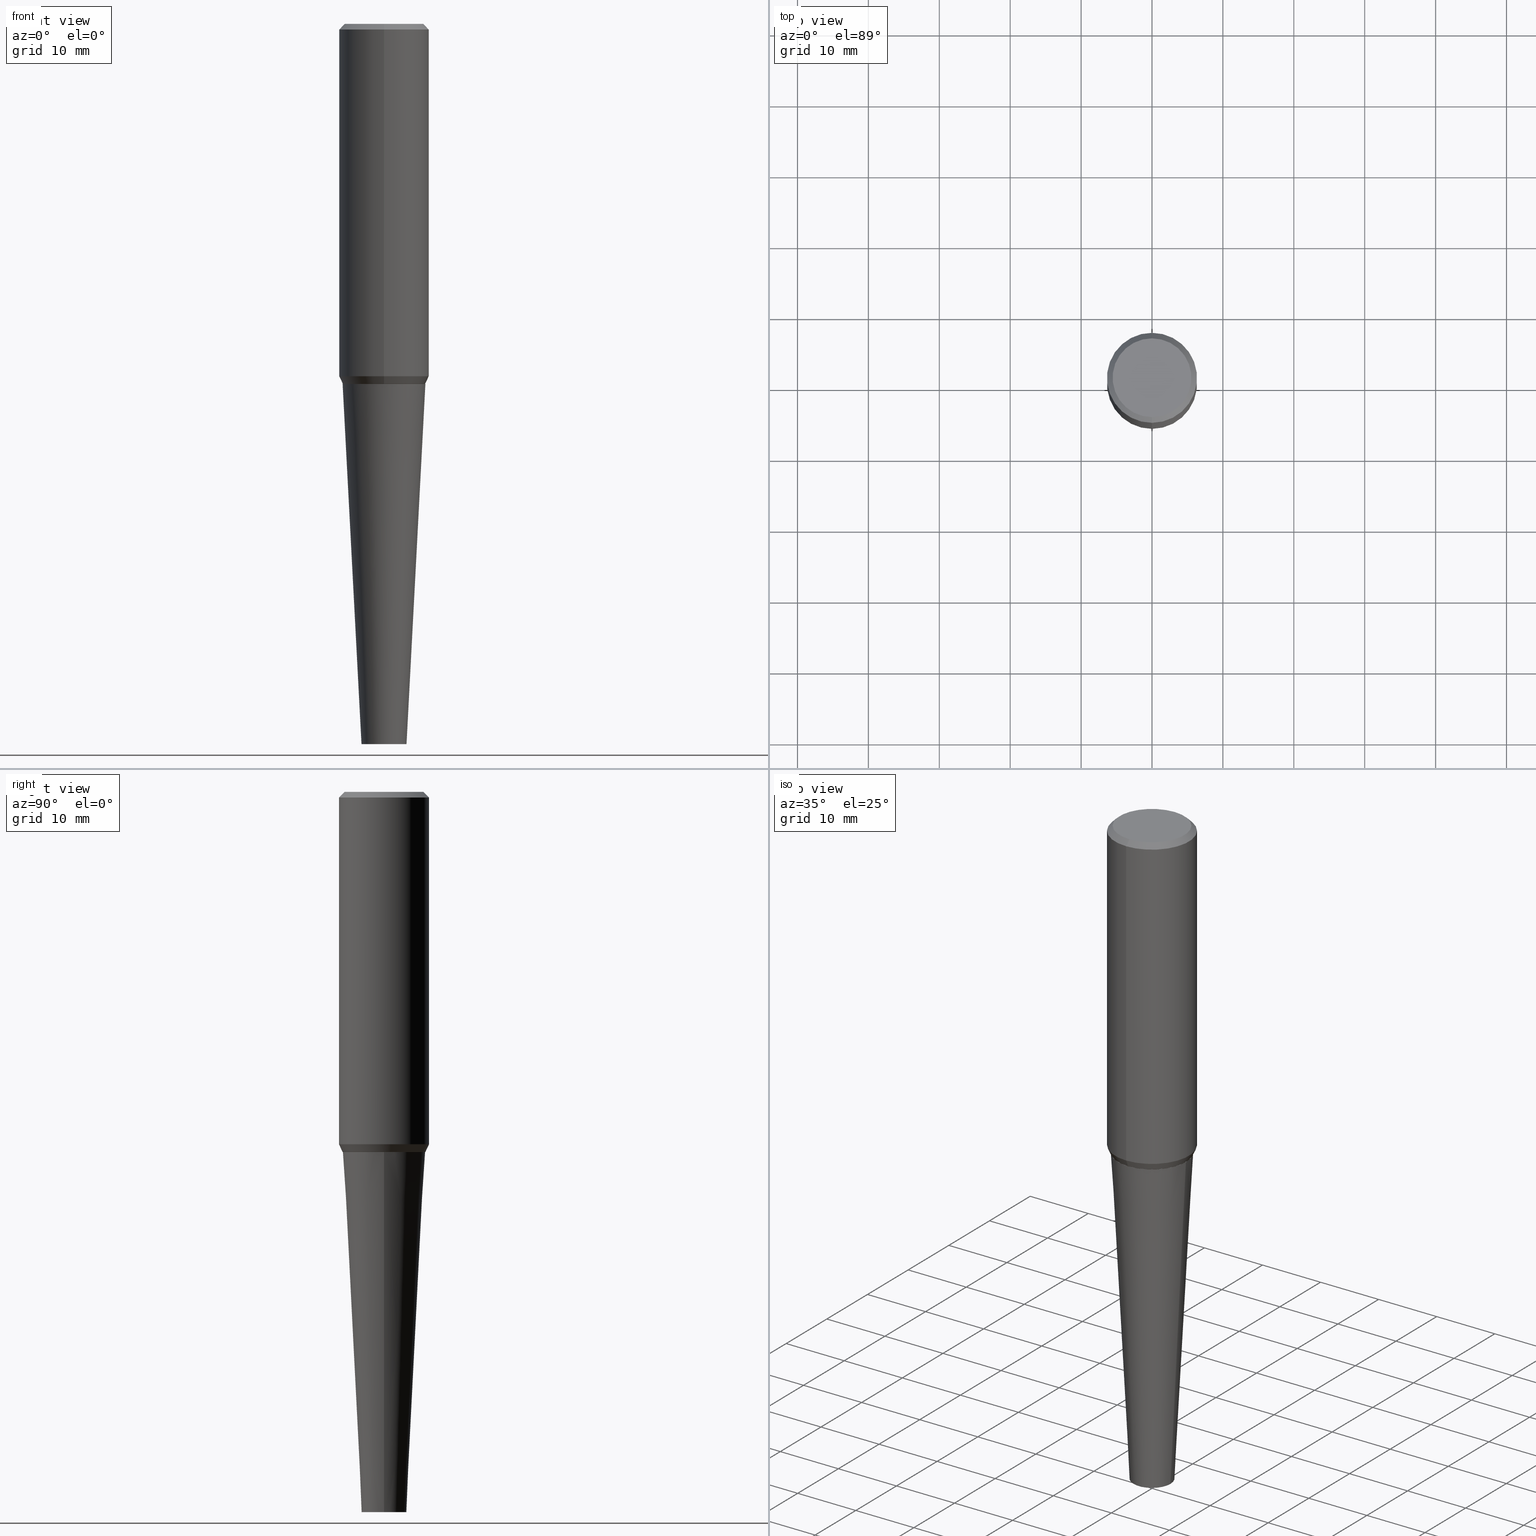
[diagram: canonical four-view strip — front | top / right | iso, engineering-drawing reading convention]
A machine part, canonical four-view strip (front | top / right | iso — engineering-drawing reading convention). The complete STEP part file that produces these views, byte-faithful:
ISO-10303-21;
HEADER;
FILE_DESCRIPTION (( 'STEP AP203' ),
    '1' );
FILE_NAME ('32361.STEP',
    '2024-03-04T15:08:43',
    ( '' ),
    ( '' ),
    'SwSTEP 2.0',
    'SolidWorks 2023',
    '' );
FILE_SCHEMA (( 'CONFIG_CONTROL_DESIGN' ));
ENDSEC;

DATA;
#1 = PERSON_AND_ORGANIZATION ( #199, #4 ) ;
#2 = CARTESIAN_POINT ( 'NONE',  ( 4.947200479945002663E-29, -6.902391049035725950E-15, -2.000000000000000000 ) ) ;
#3 = AXIS2_PLACEMENT_3D ( 'NONE', #415, #62, #383 ) ;
#4 = ORGANIZATION ( 'UNSPECIFIED', 'UNSPECIFIED', '' ) ;
#5 = DIRECTION ( 'NONE',  ( -6.982962677686265133E-15, -1.000000000000000000, 3.207890312582139837E-15 ) ) ;
#6 = DIRECTION ( 'NONE',  ( -6.982962677686266711E-15, -1.000000000000000000, 3.559373534079351446E-15 ) ) ;
#7 = DIRECTION ( 'NONE',  ( -6.982962677686265922E-15, -1.000000000000000000, 3.207890312582139837E-15 ) ) ;
#8 = AXIS2_PLACEMENT_3D ( 'NONE', #292, #72, #6 ) ;
#9 = AXIS2_PLACEMENT_3D ( 'NONE', #265, #401, #5 ) ;
#10 = DIRECTION ( 'NONE',  ( -2.643499361395871506E-29, 3.207890312582139837E-15, 1.000000000000000000 ) ) ;
#11 = CC_DESIGN_DATE_AND_TIME_ASSIGNMENT ( #187, #219, ( #70 ) ) ;
#12 = FACE_OUTER_BOUND ( 'NONE', #407, .T. ) ;
#13 = LINE ( 'NONE', #200, #180 ) ;
#14 = CONICAL_SURFACE ( 'NONE', #193, 0.2500000000000004996, 0.7853981633974468357 ) ;
#15 = MANIFOLD_SOLID_BREP ( 'Body-Move/Copy2[1]', #372 ) ;
#16 = MANIFOLD_SOLID_BREP ( 'Body-Move/Copy2[2]', #327 ) ;
#17 = FACE_OUTER_BOUND ( 'NONE', #99, .T. ) ;
#18 = EDGE_CURVE ( 'NONE', #384, #403, #146, .T. ) ;
#19 = EDGE_LOOP ( 'NONE', ( #86, #360, #108, #311 ) ) ;
#20 = ORIENTED_EDGE ( 'NONE', *, *, #291, .F. ) ;
#21 = CARTESIAN_POINT ( 'NONE',  ( 1.776356839400248295E-15, 0.2499999999999997224, -7.828487236126975993E-16 ) ) ;
#22 = ORIENTED_EDGE ( 'NONE', *, *, #95, .F. ) ;
#23 = CONICAL_SURFACE ( 'NONE', #286, 0.2293155585660684170, 0.7853981633974848053 ) ;
#24 = CARTESIAN_POINT ( 'NONE',  ( -1.607844110618465136E-15, -0.2302524279209388069, -1.999063130645135633 ) ) ;
#25 = AXIS2_PLACEMENT_3D ( 'NONE', #416, #283, #29 ) ;
#26 = DIRECTION ( 'NONE',  ( -2.643499361395871506E-29, 3.207890312582139837E-15, 1.000000000000000000 ) ) ;
#27 = EDGE_CURVE ( 'NONE', #405, #394, #270, .T. ) ;
#28 = COORDINATED_UNIVERSAL_TIME_OFFSET ( 5, 0, .BEHIND. ) ;
#29 = DIRECTION ( 'NONE',  ( -6.982962677686265922E-15, -1.000000000000000000, 3.278217592397117045E-15 ) ) ;
#30 = DIRECTION ( 'NONE',  ( -2.643499361395871506E-29, 3.207890312582139837E-15, 1.000000000000000000 ) ) ;
#31 = VECTOR ( 'NONE', #369, 39.37007874015748143 ) ;
#32 = DIRECTION ( 'NONE',  ( -6.982962677686265922E-15, -1.000000000000000000, 3.207890312582139837E-15 ) ) ;
#33 = DIRECTION ( 'NONE',  ( 2.643499361395871506E-29, -3.207890312582139837E-15, -1.000000000000000000 ) ) ;
#34 = LOCAL_TIME ( 10, 8, 43.00000000000000000, #380 ) ;
#35 = PLANE ( 'NONE',  #395 ) ;
#36 = CARTESIAN_POINT ( 'NONE',  ( 4.944723866403708802E-29, -6.899385674908104281E-15, -1.999063130645136521 ) ) ;
#37 = LINE ( 'NONE', #168, #38 ) ;
#38 = VECTOR ( 'NONE', #136, 39.37007874015748854 ) ;
#39 = ORIENTED_EDGE ( 'NONE', *, *, #410, .F. ) ;
#40 = DIRECTION ( 'NONE',  ( 2.643499361395871506E-29, -3.207890312582139837E-15, -1.000000000000000000 ) ) ;
#41 = LINE ( 'NONE', #341, #115 ) ;
#42 = AXIS2_PLACEMENT_3D ( 'NONE', #109, #230, #83 ) ;
#43 = ADVANCED_FACE ( 'NONE', ( #212 ), #69, .T. ) ;
#44 = CC_DESIGN_SECURITY_CLASSIFICATION ( #70, ( #262 ) ) ;
#45 = CARTESIAN_POINT ( 'NONE',  ( 4.890937612370273194E-29, -6.982962677686291165E-15, -2.000000000000000000 ) ) ;
#46 = EDGE_CURVE ( 'NONE', #245, #268, #122, .T. ) ;
#47 = ORIENTED_EDGE ( 'NONE', *, *, #225, .F. ) ;
#48 = DIRECTION ( 'NONE',  ( 1.000000000000000000, -6.982962677686267499E-15, 0.000000000000000000 ) ) ;
#49 = ADVANCED_FACE ( 'NONE', ( #247 ), #236, .T. ) ;
#50 = LINE ( 'NONE', #21, #170 ) ;
#51 = ORIENTED_EDGE ( 'NONE', *, *, #151, .T. ) ;
#52 = CALENDAR_DATE ( 2024, 4, 3 ) ;
#53 = DIRECTION ( 'NONE',  ( 0.05233595624293686799, 3.121236355867758903E-15, 0.9986295347545742773 ) ) ;
#54 = PERSON_AND_ORGANIZATION ( #199, #4 ) ;
#55 = AXIS2_PLACEMENT_3D ( 'NONE', #250, #253, #324 ) ;
#56 = CC_DESIGN_APPROVAL ( #309, ( #374 ) ) ;
#57 = CARTESIAN_POINT ( 'NONE',  ( -2.571888878031194345E-30, -5.868569961396391316E-16, -0.03125000000000012490 ) ) ;
#58 = CALENDAR_DATE ( 2024, 4, 3 ) ;
#59 = CARTESIAN_POINT ( 'NONE',  ( -1.715124499442888610E-15, -0.2500000000000010547, -0.03124999999999932693 ) ) ;
#60 =( LENGTH_UNIT ( ) NAMED_UNIT ( * ) SI_UNIT ( $, .METRE. ) );
#61 = APPROVAL_DATE_TIME ( #345, #309 ) ;
#62 = DIRECTION ( 'NONE',  ( -2.445468806185136597E-29, 3.491481338843145583E-15, 1.000000000000000000 ) ) ;
#63 = PERSON_AND_ORGANIZATION_ROLE ( 'design_supplier' ) ;
#64 = DIRECTION ( 'NONE',  ( -2.643499361395871506E-29, 3.207890312582139837E-15, 1.000000000000000000 ) ) ;
#65 = CIRCLE ( 'NONE', #135, 0.2293155585660683893 ) ;
#66 = ADVANCED_FACE ( 'NONE', ( #240 ), #84, .F. ) ;
#67 = FACE_OUTER_BOUND ( 'NONE', #371, .T. ) ;
#68 = CARTESIAN_POINT ( 'NONE',  ( -2.571888878031194345E-30, -5.868569961396391316E-16, -0.03125000000000012490 ) ) ;
#69 = CONICAL_SURFACE ( 'NONE', #302, 0.1250000000000000555, 0.05235987755982290243 ) ;
#70 = SECURITY_CLASSIFICATION ( '', '', #289 ) ;
#71 = CIRCLE ( 'NONE', #249, 0.2302524279209319791 ) ;
#72 = DIRECTION ( 'NONE',  ( -2.643499361395871506E-29, 3.207890312582139837E-15, 1.000000000000000000 ) ) ;
#73 = ADVANCED_FACE ( 'NONE', ( #17 ), #23, .T. ) ;
#74 = DIRECTION ( 'NONE',  ( -2.643499361395871506E-29, 3.207890312582139837E-15, 1.000000000000000000 ) ) ;
#75 = ORIENTED_EDGE ( 'NONE', *, *, #101, .F. ) ;
#76 = DIRECTION ( 'NONE',  ( 6.982962677686265133E-15, 1.000000000000000000, -3.209921392555503119E-15 ) ) ;
#77 = DIRECTION ( 'NONE',  ( -2.643499361395871506E-29, 3.207890312582139837E-15, 1.000000000000000000 ) ) ;
#78 = FACE_OUTER_BOUND ( 'NONE', #228, .T. ) ;
#79 = DIRECTION ( 'NONE',  ( 1.000000000000000000, -6.982962677686275388E-15, 0.000000000000000000 ) ) ;
#80 = ORIENTED_EDGE ( 'NONE', *, *, #166, .F. ) ;
#81 = CARTESIAN_POINT ( 'NONE',  ( -2.571888878031194345E-30, -5.868569961396391316E-16, -0.03125000000000012490 ) ) ;
#82 = EDGE_LOOP ( 'NONE', ( #80, #134, #237, #202 ) ) ;
#83 = DIRECTION ( 'NONE',  ( 1.000000000000000000, -6.982962677686275388E-15, 0.000000000000000000 ) ) ;
#84 = PLANE ( 'NONE',  #332 ) ;
#85 = LOCAL_TIME ( 10, 8, 43.00000000000000000, #386 ) ;
#86 = ORIENTED_EDGE ( 'NONE', *, *, #176, .T. ) ;
#87 = EDGE_LOOP ( 'NONE', ( #267, #301, #365, #285 ) ) ;
#88 = PRODUCT_DEFINITION_SHAPE ( 'NONE', 'NONE',  #374 ) ;
#89 = APPLICATION_PROTOCOL_DEFINITION ( 'international standard', 'config_control_design', 1994, #385 ) ;
#90 = APPROVAL_ROLE ( '' ) ;
#91 = AXIS2_PLACEMENT_3D ( 'NONE', #197, #356, #92 ) ;
#92 = DIRECTION ( 'NONE',  ( 1.000000000000000000, 0.000000000000000000, 0.000000000000000000 ) ) ;
#93 = CARTESIAN_POINT ( 'NONE',  ( 8.728703347108814534E-16, 0.1249999999999860945, -4.000000000000000888 ) ) ;
#94 = EDGE_LOOP ( 'NONE', ( #75, #210 ) ) ;
#95 = EDGE_CURVE ( 'NONE', #379, #384, #331, .T. ) ;
#96 = PERSON_AND_ORGANIZATION ( #199, #4 ) ;
#97 = DIRECTION ( 'NONE',  ( -2.445468806185136597E-29, 3.491481338843145583E-15, 1.000000000000000000 ) ) ;
#98 = VECTOR ( 'NONE', #398, 39.37007874015748143 ) ;
#99 = EDGE_LOOP ( 'NONE', ( #313, #238, #181, #204 ) ) ;
#100 = EDGE_CURVE ( 'NONE', #375, #400, #239, .T. ) ;
#101 = EDGE_CURVE ( 'NONE', #242, #342, #138, .T. ) ;
#102 = CONICAL_SURFACE ( 'NONE', #337, 0.2293155585660684170, 0.7853981633974848053 ) ;
#103 = AXIS2_PLACEMENT_3D ( 'NONE', #350, #123, #192 ) ;
#104 = CARTESIAN_POINT ( 'NONE',  ( 9.781875224740546387E-29, -1.396592535537258233E-14, -4.000000000000000000 ) ) ;
#105 = FACE_OUTER_BOUND ( 'NONE', #114, .T. ) ;
#106 = ORIENTED_EDGE ( 'NONE', *, *, #173, .T. ) ;
#107 = AXIS2_PLACEMENT_3D ( 'NONE', #387, #97, #222 ) ;
#108 = ORIENTED_EDGE ( 'NONE', *, *, #224, .F. ) ;
#109 = CARTESIAN_POINT ( 'NONE',  ( 9.781875224740546387E-29, -1.396592535537258233E-14, -4.000000000000000000 ) ) ;
#110 = ORIENTED_EDGE ( 'NONE', *, *, #27, .F. ) ;
#111 = ORIENTED_EDGE ( 'NONE', *, *, #357, .F. ) ;
#112 = DIRECTION ( 'NONE',  ( 4.937700262164541731E-15, 0.7071067811865442421, -0.7071067811865507924 ) ) ;
#113 = DIRECTION ( 'NONE',  ( -2.643499361395871506E-29, 3.207890312582139837E-15, 1.000000000000000000 ) ) ;
#114 = EDGE_LOOP ( 'NONE', ( #260, #280, #51, #22 ) ) ;
#115 = VECTOR ( 'NONE', #53, 39.37007874015748143 ) ;
#116 = COORDINATED_UNIVERSAL_TIME_OFFSET ( 5, 0, .BEHIND. ) ;
#117 =( NAMED_UNIT ( * ) SI_UNIT ( $, .STERADIAN. ) SOLID_ANGLE_UNIT ( ) );
#118 = ADVANCED_FACE ( 'NONE', ( #336 ), #102, .T. ) ;
#119 = PERSON_AND_ORGANIZATION_ROLE ( 'creator' ) ;
#120 = CARTESIAN_POINT ( 'NONE',  ( -0.2298155585660685007, -5.350024920648591981E-15, -2.000000000000000000 ) ) ;
#121 = APPROVAL_ROLE ( '' ) ;
#122 = CIRCLE ( 'NONE', #353, 0.2293155585660683893 ) ;
#123 = DIRECTION ( 'NONE',  ( -2.643499361395871506E-29, 3.207890312582139837E-15, 1.000000000000000000 ) ) ;
#124 = ORIENTED_EDGE ( 'NONE', *, *, #224, .T. ) ;
#125 = LOCAL_TIME ( 10, 8, 43.00000000000000000, #28 ) ;
#126 = DIRECTION ( 'NONE',  ( -6.982962677686266711E-15, -1.000000000000000000, 3.559373534079352235E-15 ) ) ;
#127 = APPROVAL_DATE_TIME ( #185, #174 ) ;
#128 = FACE_OUTER_BOUND ( 'NONE', #94, .T. ) ;
#129 = EDGE_CURVE ( 'NONE', #245, #235, #381, .T. ) ;
#130 = ADVANCED_FACE ( 'NONE', ( #67 ), #351, .T. ) ;
#131 = DIRECTION ( 'NONE',  ( -6.982962677686265133E-15, -1.000000000000000000, 3.573915364592045659E-15 ) ) ;
#132 = ORIENTED_EDGE ( 'NONE', *, *, #171, .T. ) ;
#133 = AXIS2_PLACEMENT_3D ( 'NONE', #295, #77, #296 ) ;
#134 = ORIENTED_EDGE ( 'NONE', *, *, #364, .T. ) ;
#135 = AXIS2_PLACEMENT_3D ( 'NONE', #2, #64, #131 ) ;
#136 = DIRECTION ( 'NONE',  ( 3.002883358794122551E-15, 0.4226182617407023834, 0.9063077870366484934 ) ) ;
#137 = CARTESIAN_POINT ( 'NONE',  ( -1.601301986879585397E-15, -0.2293155585660753282, -1.999999999999999112 ) ) ;
#138 = CIRCLE ( 'NONE', #42, 0.1250000000000000555 ) ;
#139 = VERTEX_POINT ( 'NONE', #163 ) ;
#140 = CARTESIAN_POINT ( 'NONE',  ( 9.781875224740546387E-29, -1.396592535537258233E-14, -4.000000000000000000 ) ) ;
#141 = ORIENTED_EDGE ( 'NONE', *, *, #391, .T. ) ;
#142 = ORIENTED_EDGE ( 'NONE', *, *, #173, .F. ) ;
#143 = DIRECTION ( 'NONE',  ( -2.643499361395871506E-29, 3.207890312582139837E-15, 1.000000000000000000 ) ) ;
#144 = LENGTH_MEASURE_WITH_UNIT ( LENGTH_MEASURE( 0.02539999999999999897 ), #60 );
#145 = ORIENTED_EDGE ( 'NONE', *, *, #161, .F. ) ;
#146 = CIRCLE ( 'NONE', #226, 0.2500000000000004996 ) ;
#147 = APPROVAL_STATUS ( 'not_yet_approved' ) ;
#148 = DATE_AND_TIME ( #58, #85 ) ;
#149 = CARTESIAN_POINT ( 'NONE',  ( -1.745740669421517768E-15, -0.2500000000000067168, -1.956714325658313269 ) ) ;
#150 = APPROVAL_DATE_TIME ( #243, #323 ) ;
#151 = EDGE_CURVE ( 'NONE', #403, #384, #261, .T. ) ;
#152 = ADVANCED_FACE ( 'NONE', ( #259 ), #256, .T. ) ;
#153 = DATE_TIME_ROLE ( 'creation_date' ) ;
#154 = AXIS2_PLACEMENT_3D ( 'NONE', #68, #33, #76 ) ;
#155 = DIRECTION ( 'NONE',  ( -6.982962677686265922E-15, -1.000000000000000000, 3.207890312582139837E-15 ) ) ;
#156 = CARTESIAN_POINT ( 'NONE',  ( 1.745740669421567269E-15, 0.2499999999999998890, -0.03125000000000092981 ) ) ;
#157 = PERSON_AND_ORGANIZATION ( #199, #4 ) ;
#158 = CARTESIAN_POINT ( 'NONE',  ( -3.397982428467409796E-30, -4.866104238714466701E-16, 7.455686268861970718E-17 ) ) ;
#159 = CARTESIAN_POINT ( 'NONE',  ( 1.636631877582718366E-15, 0.2187499999999998890, -6.271691431887245285E-16 ) ) ;
#160 = DIMENSIONAL_EXPONENTS ( 1.000000000000000000, 0.000000000000000000, 0.000000000000000000, 0.000000000000000000, 0.000000000000000000, 0.000000000000000000, 0.000000000000000000 ) ;
#161 = EDGE_CURVE ( 'NONE', #139, #403, #330, .T. ) ;
#162 = DIRECTION ( 'NONE',  ( -6.982962677686265133E-15, -1.000000000000000000, 3.209921392555503119E-15 ) ) ;
#163 = CARTESIAN_POINT ( 'NONE',  ( -1.607929218227708429E-15, -0.2187500000000008327, 7.762828685659639182E-16 ) ) ;
#164 = LOCAL_TIME ( 10, 8, 43.00000000000000000, #221 ) ;
#165 = CARTESIAN_POINT ( 'NONE',  ( 1.745740669421567269E-15, 0.2499999999999998890, -0.03125000000000092981 ) ) ;
#166 = EDGE_CURVE ( 'NONE', #235, #334, #37, .T. ) ;
#167 = CARTESIAN_POINT ( 'NONE',  ( 4.796606803389618255E-29, -7.118049765122808889E-15, -2.000000000000000000 ) ) ;
#168 = CARTESIAN_POINT ( 'NONE',  ( 1.636041900503492355E-15, 0.2302524279209251235, -1.999063130645137187 ) ) ;
#169 = VECTOR ( 'NONE', #258, 39.37007874015748143 ) ;
#170 = VECTOR ( 'NONE', #26, 39.37007874015748143 ) ;
#171 = EDGE_CURVE ( 'NONE', #379, #139, #278, .T. ) ;
#172 = DIRECTION ( 'NONE',  ( 6.982962677686265922E-15, 1.000000000000000000, -3.207890312582139837E-15 ) ) ;
#173 = EDGE_CURVE ( 'NONE', #394, #405, #186, .T. ) ;
#174 = APPROVAL ( #320, 'UNSPECIFIED' ) ;
#175 = CARTESIAN_POINT ( 'NONE',  ( 1.527523085743869857E-15, 0.2187499999999998890, -6.548856472666153755E-16 ) ) ;
#176 = EDGE_CURVE ( 'NONE', #375, #235, #232, .T. ) ;
#177 = ORIENTED_EDGE ( 'NONE', *, *, #18, .T. ) ;
#178 = CARTESIAN_POINT ( 'NONE',  ( -3.397982428467408395E-30, -4.866104238714468673E-16, 1.912385453283800096E-17 ) ) ;
#179 = ORIENTED_EDGE ( 'NONE', *, *, #363, .T. ) ;
#180 = VECTOR ( 'NONE', #263, 39.37007874015748143 ) ;
#181 = ORIENTED_EDGE ( 'NONE', *, *, #176, .F. ) ;
#182 = ORIENTED_EDGE ( 'NONE', *, *, #218, .T. ) ;
#183 = DIRECTION ( 'NONE',  ( 2.438088387897960049E-29, -3.491481338843145188E-15, -1.000000000000000000 ) ) ;
#184 = EDGE_LOOP ( 'NONE', ( #234, #307, #142, #276 ) ) ;
#185 = DATE_AND_TIME ( #52, #34 ) ;
#186 = CIRCLE ( 'NONE', #3, 0.2298155585660685007 ) ;
#187 = DATE_AND_TIME ( #211, #125 ) ;
#188 = CONICAL_SURFACE ( 'NONE', #352, 0.2302524279209320068, 0.4363323129985824944 ) ;
#189 = APPROVAL_STATUS ( 'not_yet_approved' ) ;
#190 = CARTESIAN_POINT ( 'NONE',  ( 0.1250000000000000555, -1.483879569008336725E-14, -4.000000000000000000 ) ) ;
#191 = MECHANICAL_CONTEXT ( 'NONE', #385, 'mechanical' ) ;
#192 = DIRECTION ( 'NONE',  ( -6.982962677686265922E-15, -1.000000000000000000, 3.278217592397117045E-15 ) ) ;
#193 = AXIS2_PLACEMENT_3D ( 'NONE', #81, #40, #298 ) ;
#194 = CARTESIAN_POINT ( 'NONE',  ( -0.1250000000000000555, -1.307774693567245552E-14, -4.000000000000000000 ) ) ;
#195 = ADVANCED_BREP_SHAPE_REPRESENTATION ( '32361', ( #15, #16, #91 ), #305 ) ;
#196 = AXIS2_PLACEMENT_3D ( 'NONE', #178, #366, #406 ) ;
#197 = CARTESIAN_POINT ( 'NONE',  ( 0.000000000000000000, 0.000000000000000000, 0.000000000000000000 ) ) ;
#198 = ORIENTED_EDGE ( 'NONE', *, *, #46, .F. ) ;
#199 = PERSON ( 'UNSPECIFIED', 'UNSPECIFIED', 'UNSPECIFIED', ('UNSPECIFIED'), ('UNSPECIFIED'), ('UNSPECIFIED') ) ;
#200 = CARTESIAN_POINT ( 'NONE',  ( -1.745740669421571411E-15, -0.2500000000000006661, 8.210964326783736998E-16 ) ) ;
#201 = LOCAL_TIME ( 10, 8, 43.00000000000000000, #116 ) ;
#202 = ORIENTED_EDGE ( 'NONE', *, *, #391, .F. ) ;
#203 = UNCERTAINTY_MEASURE_WITH_UNIT (LENGTH_MEASURE( 1.000000000000000082E-05 ), #214, 'distance_accuracy_value', 'NONE');
#204 = ORIENTED_EDGE ( 'NONE', *, *, #306, .F. ) ;
#205 = CARTESIAN_POINT ( 'NONE',  ( 1.604793468218527406E-15, 0.2298155585660615341, -2.000000000000000888 ) ) ;
#206 = EDGE_LOOP ( 'NONE', ( #106, #251 ) ) ;
#207 = VECTOR ( 'NONE', #112, 39.37007874015748143 ) ;
#208 = ORIENTED_EDGE ( 'NONE', *, *, #151, .F. ) ;
#209 = EDGE_LOOP ( 'NONE', ( #111, #182, #179, #110 ) ) ;
#210 = ORIENTED_EDGE ( 'NONE', *, *, #218, .F. ) ;
#211 = CALENDAR_DATE ( 2024, 4, 3 ) ;
#212 = FACE_OUTER_BOUND ( 'NONE', #209, .T. ) ;
#213 = ADVANCED_FACE ( 'NONE', ( #128 ), #290, .T. ) ;
#214 =( CONVERSION_BASED_UNIT ( 'INCH', #144 ) LENGTH_UNIT ( ) NAMED_UNIT ( #160 ) );
#215 = VECTOR ( 'NONE', #414, 39.37007874015748143 ) ;
#216 = ORIENTED_EDGE ( 'NONE', *, *, #171, .F. ) ;
#217 = CIRCLE ( 'NONE', #103, 0.2499999999999999167 ) ;
#218 = EDGE_CURVE ( 'NONE', #342, #242, #241, .T. ) ;
#219 = DATE_TIME_ROLE ( 'classification_date' ) ;
#220 = DIRECTION ( 'NONE',  ( 2.438088387897960049E-29, -3.491481338843145188E-15, -1.000000000000000000 ) ) ;
#221 = COORDINATED_UNIVERSAL_TIME_OFFSET ( 5, 0, .BEHIND. ) ;
#222 = DIRECTION ( 'NONE',  ( 1.000000000000000000, -6.982962677686275388E-15, 0.000000000000000000 ) ) ;
#223 = DIRECTION ( 'NONE',  ( -6.982962677686266711E-15, -1.000000000000000000, 3.559373534079351446E-15 ) ) ;
#224 = EDGE_CURVE ( 'NONE', #400, #334, #217, .T. ) ;
#225 = EDGE_CURVE ( 'NONE', #268, #245, #65, .T. ) ;
#226 = AXIS2_PLACEMENT_3D ( 'NONE', #57, #408, #162 ) ;
#227 = CIRCLE ( 'NONE', #413, 0.2187500000000003608 ) ;
#228 = EDGE_LOOP ( 'NONE', ( #39, #141, #312, #389 ) ) ;
#229 = DIRECTION ( 'NONE',  ( -2.445468806185136597E-29, 3.491481338843145583E-15, 1.000000000000000000 ) ) ;
#230 = DIRECTION ( 'NONE',  ( -2.445468806185136597E-29, 3.491481338843145583E-15, 1.000000000000000000 ) ) ;
#231 = LINE ( 'NONE', #137, #98 ) ;
#232 = CIRCLE ( 'NONE', #55, 0.2302524279209319791 ) ;
#233 = APPROVAL_PERSON_ORGANIZATION ( #319, #323, #411 ) ;
#234 = ORIENTED_EDGE ( 'NONE', *, *, #101, .T. ) ;
#235 = VERTEX_POINT ( 'NONE', #347 ) ;
#236 = CYLINDRICAL_SURFACE ( 'NONE', #196, 0.2500000000000002220 ) ;
#237 = ORIENTED_EDGE ( 'NONE', *, *, #100, .T. ) ;
#238 = ORIENTED_EDGE ( 'NONE', *, *, #129, .T. ) ;
#239 = LINE ( 'NONE', #279, #31 ) ;
#240 = FACE_OUTER_BOUND ( 'NONE', #206, .T. ) ;
#241 = CIRCLE ( 'NONE', #107, 0.1250000000000000555 ) ;
#242 = VERTEX_POINT ( 'NONE', #190 ) ;
#243 = DATE_AND_TIME ( #248, #164 ) ;
#244 = DIRECTION ( 'NONE',  ( -2.445468806185136597E-29, 3.491481338843145583E-15, 1.000000000000000000 ) ) ;
#245 = VERTEX_POINT ( 'NONE', #358 ) ;
#246 = CALENDAR_DATE ( 2024, 4, 3 ) ;
#247 = FACE_OUTER_BOUND ( 'NONE', #314, .T. ) ;
#248 = CALENDAR_DATE ( 2024, 4, 3 ) ;
#249 = AXIS2_PLACEMENT_3D ( 'NONE', #343, #315, #126 ) ;
#250 = CARTESIAN_POINT ( 'NONE',  ( 4.944723866403708802E-29, -6.899385674908104281E-15, -1.999063130645136521 ) ) ;
#251 = ORIENTED_EDGE ( 'NONE', *, *, #27, .T. ) ;
#252 = PERSON_AND_ORGANIZATION ( #199, #4 ) ;
#253 = DIRECTION ( 'NONE',  ( -2.643499361395871506E-29, 3.207890312582139837E-15, 1.000000000000000000 ) ) ;
#254 = FACE_OUTER_BOUND ( 'NONE', #19, .T. ) ;
#255 = CARTESIAN_POINT ( 'NONE',  ( 0.2298155585660685007, -8.587756145904770253E-15, -2.000000000000000000 ) ) ;
#256 = CONICAL_SURFACE ( 'NONE', #8, 0.2302524279209320068, 0.4363323129985824944 ) ;
#257 = CONICAL_SURFACE ( 'NONE', #328, 0.1250000000000000555, 0.05235987755982290243 ) ;
#258 = DIRECTION ( 'NONE',  ( -4.851104656540954809E-15, -0.7071067811865486830, -0.7071067811865463515 ) ) ;
#259 = FACE_OUTER_BOUND ( 'NONE', #82, .T. ) ;
#260 = ORIENTED_EDGE ( 'NONE', *, *, #321, .F. ) ;
#261 = CIRCLE ( 'NONE', #133, 0.2500000000000004996 ) ;
#262 = PRODUCT_DEFINITION_FORMATION_WITH_SPECIFIED_SOURCE ( 'ANY', '', #359, .NOT_KNOWN. ) ;
#263 = DIRECTION ( 'NONE',  ( -2.643499361395871506E-29, 3.207890312582139837E-15, 1.000000000000000000 ) ) ;
#264 = CARTESIAN_POINT ( 'NONE',  ( -0.1250000000000000555, -9.213885928160524934E-15, -4.000000000000000000 ) ) ;
#265 = CARTESIAN_POINT ( 'NONE',  ( -3.397982428467408395E-30, -4.866104238714468673E-16, 1.912385453283800096E-17 ) ) ;
#266 = DIRECTION ( 'NONE',  ( -0.05233595624293686799, 3.858565720287981448E-15, 0.9986295347545742773 ) ) ;
#267 = ORIENTED_EDGE ( 'NONE', *, *, #129, .F. ) ;
#268 = VERTEX_POINT ( 'NONE', #361 ) ;
#269 = CYLINDRICAL_SURFACE ( 'NONE', #9, 0.2500000000000002220 ) ;
#270 = CIRCLE ( 'NONE', #344, 0.2298155585660685007 ) ;
#271 = CIRCLE ( 'NONE', #25, 0.2499999999999999167 ) ;
#272 = ORIENTED_EDGE ( 'NONE', *, *, #321, .T. ) ;
#273 = CARTESIAN_POINT ( 'NONE',  ( 4.947200479945002663E-29, -6.902391049035725950E-15, -2.000000000000000000 ) ) ;
#274 = CARTESIAN_POINT ( 'NONE',  ( 4.947200479945002663E-29, -6.902391049035725950E-15, -2.000000000000000000 ) ) ;
#275 = ADVANCED_FACE ( 'NONE', ( #105 ), #14, .T. ) ;
#276 = ORIENTED_EDGE ( 'NONE', *, *, #363, .F. ) ;
#277 = DIRECTION ( 'NONE',  ( -6.982962677686265922E-15, -1.000000000000000000, 3.573915364592045659E-15 ) ) ;
#278 = CIRCLE ( 'NONE', #316, 0.2187500000000003608 ) ;
#279 = CARTESIAN_POINT ( 'NONE',  ( -1.607844110618465925E-15, -0.2302524279209389180, -1.999063130645135633 ) ) ;
#280 = ORIENTED_EDGE ( 'NONE', *, *, #161, .T. ) ;
#281 = CARTESIAN_POINT ( 'NONE',  ( 4.947200479945002663E-29, -6.902391049035725950E-15, -2.000000000000000000 ) ) ;
#282 = CC_DESIGN_PERSON_AND_ORGANIZATION_ASSIGNMENT ( #157, #349, ( #262 ) ) ;
#283 = DIRECTION ( 'NONE',  ( -2.643499361395871506E-29, 3.207890312582139837E-15, 1.000000000000000000 ) ) ;
#284 = PERSON_AND_ORGANIZATION ( #199, #4 ) ;
#285 = ORIENTED_EDGE ( 'NONE', *, *, #364, .F. ) ;
#286 = AXIS2_PLACEMENT_3D ( 'NONE', #274, #113, #393 ) ;
#287 = DIRECTION ( 'NONE',  ( -1.000000000000000000, 6.982962677686265922E-15, -4.876176775795935793E-29 ) ) ;
#288 = ADVANCED_FACE ( 'NONE', ( #12 ), #299, .F. ) ;
#289 = SECURITY_CLASSIFICATION_LEVEL ( 'unclassified' ) ;
#290 = PLANE ( 'NONE',  #362 ) ;
#291 = EDGE_CURVE ( 'NONE', #400, #403, #13, .T. ) ;
#292 = CARTESIAN_POINT ( 'NONE',  ( 4.944723866403708802E-29, -6.899385674908104281E-15, -1.999063130645136521 ) ) ;
#293 = CC_DESIGN_APPROVAL ( #323, ( #262 ) ) ;
#294 = CC_DESIGN_PERSON_AND_ORGANIZATION_ASSIGNMENT ( #284, #63, ( #262 ) ) ;
#295 = CARTESIAN_POINT ( 'NONE',  ( -2.571888878031194345E-30, -5.868569961396391316E-16, -0.03125000000000012490 ) ) ;
#296 = DIRECTION ( 'NONE',  ( -6.982962677686265133E-15, -1.000000000000000000, 3.209921392555503119E-15 ) ) ;
#297 = DIRECTION ( 'NONE',  ( -2.643499361395871506E-29, 3.207890312582139837E-15, 1.000000000000000000 ) ) ;
#298 = DIRECTION ( 'NONE',  ( 6.982962677686265133E-15, 1.000000000000000000, -3.209921392555503119E-15 ) ) ;
#299 = PLANE ( 'NONE',  #373 ) ;
#300 = DIRECTION ( 'NONE',  ( -6.982962677686265133E-15, -1.000000000000000000, 3.573915364592045659E-15 ) ) ;
#301 = ORIENTED_EDGE ( 'NONE', *, *, #46, .T. ) ;
#302 = AXIS2_PLACEMENT_3D ( 'NONE', #140, #244, #377 ) ;
#303 = PRODUCT_RELATED_PRODUCT_CATEGORY ( 'detail', '', ( #359 ) ) ;
#304 = APPROVAL_PERSON_ORGANIZATION ( #252, #309, #121 ) ;
#305 =( GEOMETRIC_REPRESENTATION_CONTEXT ( 3 ) GLOBAL_UNCERTAINTY_ASSIGNED_CONTEXT ( ( #203 ) ) GLOBAL_UNIT_ASSIGNED_CONTEXT ( ( #214, #382, #117 ) ) REPRESENTATION_CONTEXT ( 'NONE', 'WORKASPACE' ) );
#306 = EDGE_CURVE ( 'NONE', #268, #375, #231, .T. ) ;
#307 = ORIENTED_EDGE ( 'NONE', *, *, #357, .T. ) ;
#308 = DIRECTION ( 'NONE',  ( -1.000000000000000000, 6.982962677686265922E-15, -4.876176775795935793E-29 ) ) ;
#309 = APPROVAL ( #147, 'UNSPECIFIED' ) ;
#310 = DESIGN_CONTEXT ( 'detailed design', #367, 'design' ) ;
#311 = ORIENTED_EDGE ( 'NONE', *, *, #100, .F. ) ;
#312 = ORIENTED_EDGE ( 'NONE', *, *, #291, .T. ) ;
#313 = ORIENTED_EDGE ( 'NONE', *, *, #225, .T. ) ;
#314 = EDGE_LOOP ( 'NONE', ( #124, #412, #208, #20 ) ) ;
#315 = DIRECTION ( 'NONE',  ( -2.643499361395871506E-29, 3.207890312582139837E-15, 1.000000000000000000 ) ) ;
#316 = AXIS2_PLACEMENT_3D ( 'NONE', #158, #30, #155 ) ;
#317 = ADVANCED_FACE ( 'NONE', ( #78 ), #269, .T. ) ;
#318 = VECTOR ( 'NONE', #266, 39.37007874015748143 ) ;
#319 = PERSON_AND_ORGANIZATION ( #199, #4 ) ;
#320 = APPROVAL_STATUS ( 'not_yet_approved' ) ;
#321 = EDGE_CURVE ( 'NONE', #139, #379, #227, .T. ) ;
#322 = CARTESIAN_POINT ( 'NONE',  ( 1.629385043358946603E-15, 0.2293155585660615337, -2.000000000000000888 ) ) ;
#323 = APPROVAL ( #189, 'UNSPECIFIED' ) ;
#324 = DIRECTION ( 'NONE',  ( -6.982962677686266711E-15, -1.000000000000000000, 3.559373534079352235E-15 ) ) ;
#325 = ADVANCED_FACE ( 'NONE', ( #329 ), #35, .F. ) ;
#326 = CC_DESIGN_DATE_AND_TIME_ASSIGNMENT ( #148, #153, ( #374 ) ) ;
#327 = CLOSED_SHELL ( 'NONE', ( #348, #49, #275, #73, #118, #325, #288, #130, #317, #152 ) ) ;
#328 = AXIS2_PLACEMENT_3D ( 'NONE', #104, #229, #79 ) ;
#329 = FACE_OUTER_BOUND ( 'NONE', #370, .T. ) ;
#330 = LINE ( 'NONE', #396, #169 ) ;
#331 = LINE ( 'NONE', #165, #207 ) ;
#332 = AXIS2_PLACEMENT_3D ( 'NONE', #205, #183, #308 ) ;
#333 = DIRECTION ( 'NONE',  ( 2.643499361395871506E-29, -3.207890312582139837E-15, -1.000000000000000000 ) ) ;
#334 = VERTEX_POINT ( 'NONE', #397 ) ;
#335 = ADVANCED_FACE ( 'NONE', ( #399 ), #257, .T. ) ;
#336 = FACE_OUTER_BOUND ( 'NONE', #87, .T. ) ;
#337 = AXIS2_PLACEMENT_3D ( 'NONE', #273, #143, #277 ) ;
#338 = DIRECTION ( 'NONE',  ( -2.445468806185136597E-29, 3.491481338843145583E-15, 1.000000000000000000 ) ) ;
#339 = ORIENTED_EDGE ( 'NONE', *, *, #95, .T. ) ;
#340 = PERSON_AND_ORGANIZATION ( #199, #4 ) ;
#341 = CARTESIAN_POINT ( 'NONE',  ( 0.1250000000000000555, -1.483879569008336725E-14, -4.000000000000000000 ) ) ;
#342 = VERTEX_POINT ( 'NONE', #264 ) ;
#343 = CARTESIAN_POINT ( 'NONE',  ( 4.944723866403708802E-29, -6.899385674908104281E-15, -1.999063130645136521 ) ) ;
#344 = AXIS2_PLACEMENT_3D ( 'NONE', #45, #338, #48 ) ;
#345 = DATE_AND_TIME ( #246, #201 ) ;
#346 = APPLICATION_PROTOCOL_DEFINITION ( 'international standard', 'config_control_design', 1994, #367 ) ;
#347 = CARTESIAN_POINT ( 'NONE',  ( 1.636041900503492750E-15, 0.2302524279209252067, -1.999063130645137187 ) ) ;
#348 = ADVANCED_FACE ( 'NONE', ( #254 ), #188, .T. ) ;
#349 = PERSON_AND_ORGANIZATION_ROLE ( 'creator' ) ;
#350 = CARTESIAN_POINT ( 'NONE',  ( 4.832774827465166052E-29, -6.763535353641446132E-15, -1.956714325658313935 ) ) ;
#351 = CONICAL_SURFACE ( 'NONE', #154, 0.2500000000000004996, 0.7853981633974468357 ) ;
#352 = AXIS2_PLACEMENT_3D ( 'NONE', #36, #10, #223 ) ;
#353 = AXIS2_PLACEMENT_3D ( 'NONE', #281, #368, #300 ) ;
#354 = CC_DESIGN_PERSON_AND_ORGANIZATION_ASSIGNMENT ( #340, #409, ( #359 ) ) ;
#355 = CARTESIAN_POINT ( 'NONE',  ( -3.397982428467409796E-30, -4.866104238714466701E-16, 7.455686268861970718E-17 ) ) ;
#356 = DIRECTION ( 'NONE',  ( 0.000000000000000000, 0.000000000000000000, 1.000000000000000000 ) ) ;
#357 = EDGE_CURVE ( 'NONE', #342, #405, #388, .T. ) ;
#358 = CARTESIAN_POINT ( 'NONE',  ( 1.632713471931219282E-15, 0.2293155585660615059, -2.000000000000000888 ) ) ;
#359 = PRODUCT ( '32361', '32361', '', ( #191 ) ) ;
#360 = ORIENTED_EDGE ( 'NONE', *, *, #166, .T. ) ;
#361 = CARTESIAN_POINT ( 'NONE',  ( -1.601301986879585002E-15, -0.2293155585660753004, -1.999999999999999112 ) ) ;
#362 = AXIS2_PLACEMENT_3D ( 'NONE', #93, #220, #287 ) ;
#363 = EDGE_CURVE ( 'NONE', #242, #394, #41, .T. ) ;
#364 = EDGE_CURVE ( 'NONE', #235, #375, #71, .T. ) ;
#365 = ORIENTED_EDGE ( 'NONE', *, *, #306, .T. ) ;
#366 = DIRECTION ( 'NONE',  ( -2.643499361395871506E-29, 3.207890312582139837E-15, 1.000000000000000000 ) ) ;
#367 = APPLICATION_CONTEXT ( 'configuration controlled 3d designs of mechanical parts and assemblies' ) ;
#368 = DIRECTION ( 'NONE',  ( -2.643499361395871506E-29, 3.207890312582139837E-15, 1.000000000000000000 ) ) ;
#369 = DIRECTION ( 'NONE',  ( -2.951127548643974866E-15, -0.4226182617406966657, 0.9063077870366512689 ) ) ;
#370 = EDGE_LOOP ( 'NONE', ( #47, #198 ) ) ;
#371 = EDGE_LOOP ( 'NONE', ( #145, #216, #339, #177 ) ) ;
#372 = CLOSED_SHELL ( 'NONE', ( #335, #213, #43, #66 ) ) ;
#373 = AXIS2_PLACEMENT_3D ( 'NONE', #175, #333, #172 ) ;
#374 = PRODUCT_DEFINITION ( 'UNKNOWN', '', #262, #310 ) ;
#375 = VERTEX_POINT ( 'NONE', #24 ) ;
#376 = PERSON_AND_ORGANIZATION_ROLE ( 'classification_officer' ) ;
#377 = DIRECTION ( 'NONE',  ( 1.000000000000000000, -6.982962677686275388E-15, 0.000000000000000000 ) ) ;
#378 = SHAPE_DEFINITION_REPRESENTATION ( #88, #195 ) ;
#379 = VERTEX_POINT ( 'NONE', #159 ) ;
#380 = COORDINATED_UNIVERSAL_TIME_OFFSET ( 5, 0, .BEHIND. ) ;
#381 = LINE ( 'NONE', #322, #215 ) ;
#382 =( NAMED_UNIT ( * ) PLANE_ANGLE_UNIT ( ) SI_UNIT ( $, .RADIAN. ) );
#383 = DIRECTION ( 'NONE',  ( 1.000000000000000000, -6.982962677686267499E-15, 0.000000000000000000 ) ) ;
#384 = VERTEX_POINT ( 'NONE', #156 ) ;
#385 = APPLICATION_CONTEXT ( 'configuration controlled 3d designs of mechanical parts and assemblies' ) ;
#386 = COORDINATED_UNIVERSAL_TIME_OFFSET ( 5, 0, .BEHIND. ) ;
#387 = CARTESIAN_POINT ( 'NONE',  ( 9.781875224740546387E-29, -1.396592535537258233E-14, -4.000000000000000000 ) ) ;
#388 = LINE ( 'NONE', #194, #318 ) ;
#389 = ORIENTED_EDGE ( 'NONE', *, *, #18, .F. ) ;
#390 = CC_DESIGN_PERSON_AND_ORGANIZATION_ASSIGNMENT ( #1, #376, ( #70 ) ) ;
#391 = EDGE_CURVE ( 'NONE', #334, #400, #271, .T. ) ;
#392 = CC_DESIGN_APPROVAL ( #174, ( #70 ) ) ;
#393 = DIRECTION ( 'NONE',  ( -6.982962677686265922E-15, -1.000000000000000000, 3.573915364592045659E-15 ) ) ;
#394 = VERTEX_POINT ( 'NONE', #255 ) ;
#395 = AXIS2_PLACEMENT_3D ( 'NONE', #167, #297, #7 ) ;
#396 = CARTESIAN_POINT ( 'NONE',  ( -1.715124499442888610E-15, -0.2500000000000010547, -0.03124999999999932693 ) ) ;
#397 = CARTESIAN_POINT ( 'NONE',  ( 1.776356839400273342E-15, 0.2499999999999931721, -1.956714325658314824 ) ) ;
#398 = DIRECTION ( 'NONE',  ( -4.937700262164729480E-15, -0.7071067811865711095, 0.7071067811865239250 ) ) ;
#399 = FACE_OUTER_BOUND ( 'NONE', #184, .T. ) ;
#400 = VERTEX_POINT ( 'NONE', #149 ) ;
#401 = DIRECTION ( 'NONE',  ( -2.643499361395871506E-29, 3.207890312582139837E-15, 1.000000000000000000 ) ) ;
#402 = CC_DESIGN_PERSON_AND_ORGANIZATION_ASSIGNMENT ( #96, #119, ( #374 ) ) ;
#403 = VERTEX_POINT ( 'NONE', #59 ) ;
#404 = APPROVAL_PERSON_ORGANIZATION ( #54, #174, #90 ) ;
#405 = VERTEX_POINT ( 'NONE', #120 ) ;
#406 = DIRECTION ( 'NONE',  ( -6.982962677686265133E-15, -1.000000000000000000, 3.207890312582139837E-15 ) ) ;
#407 = EDGE_LOOP ( 'NONE', ( #132, #272 ) ) ;
#408 = DIRECTION ( 'NONE',  ( -2.643499361395871506E-29, 3.207890312582139837E-15, 1.000000000000000000 ) ) ;
#409 = PERSON_AND_ORGANIZATION_ROLE ( 'design_owner' ) ;
#410 = EDGE_CURVE ( 'NONE', #334, #384, #50, .T. ) ;
#411 = APPROVAL_ROLE ( '' ) ;
#412 = ORIENTED_EDGE ( 'NONE', *, *, #410, .T. ) ;
#413 = AXIS2_PLACEMENT_3D ( 'NONE', #355, #74, #32 ) ;
#414 = DIRECTION ( 'NONE',  ( 5.024295867788243828E-15, 0.7071067811865755504, 0.7071067811865194841 ) ) ;
#415 = CARTESIAN_POINT ( 'NONE',  ( 4.890937612370273194E-29, -6.982962677686291165E-15, -2.000000000000000000 ) ) ;
#416 = CARTESIAN_POINT ( 'NONE',  ( 4.832774827465166052E-29, -6.763535353641446132E-15, -1.956714325658313935 ) ) ;
ENDSEC;
END-ISO-10303-21;
